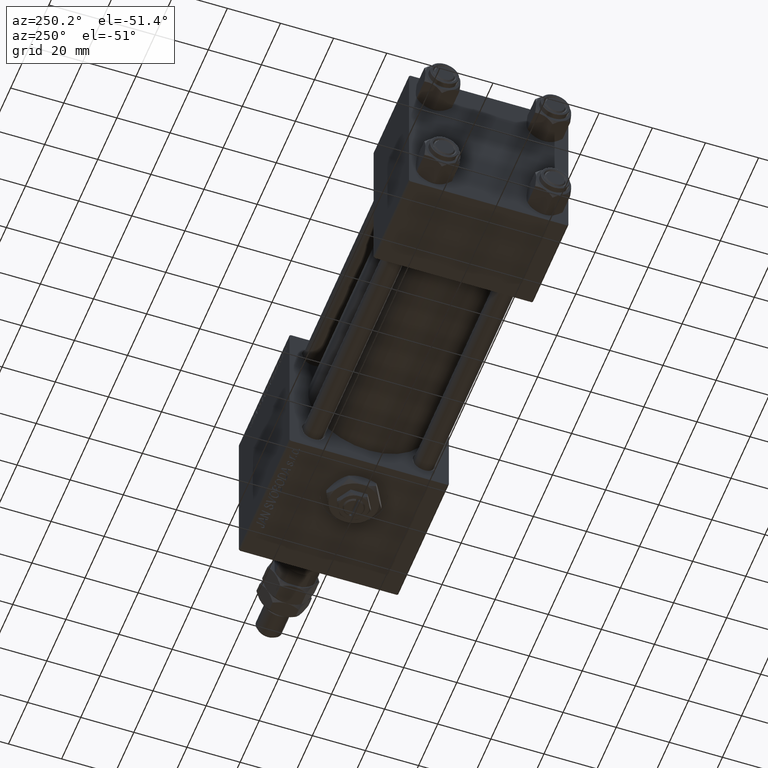
[diagram: clean part render]
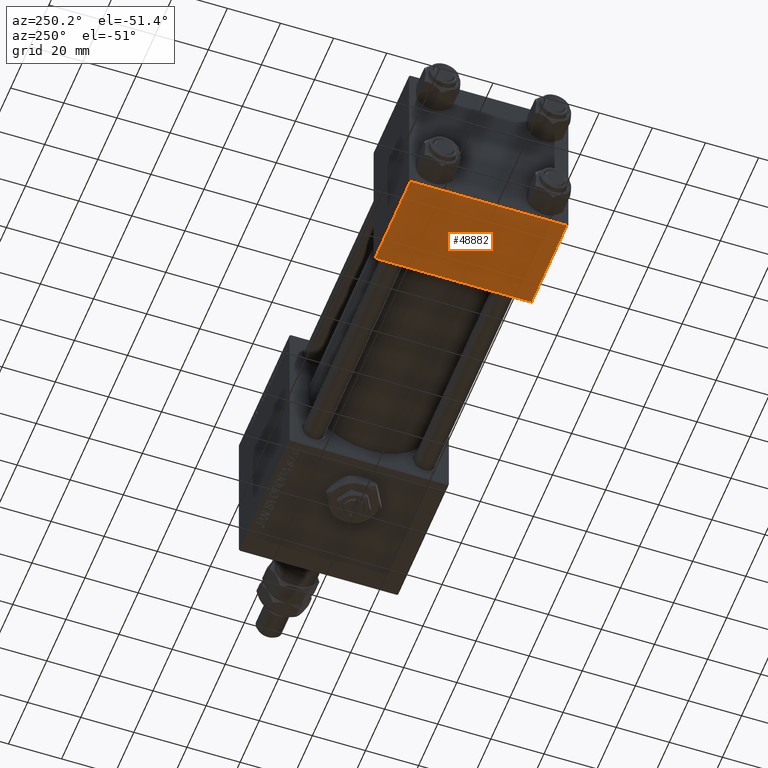
[diagram: same view with one face highlighted and labeled with its STEP entity id]
A machine part, auxiliary view. The second image highlights one B-rep face of the part: STEP entity #48882.
In plain terms, the highlighted planar face has unit normal (0, 0, -1).
Its self-contained STEP definition (entity closure, byte-faithful):
#221 = AXIS2_PLACEMENT_3D ( 'NONE', #46017, #6441, #46997 ) ;
#791 = VECTOR ( 'NONE', #17197, 1000.000000000000000 ) ;
#3949 = VERTEX_POINT ( 'NONE', #25772 ) ;
#4373 = VERTEX_POINT ( 'NONE', #20224 ) ;
#6217 = EDGE_CURVE ( 'NONE', #41614, #3949, #20733, .T. ) ;
#6325 = CARTESIAN_POINT ( 'NONE',  ( 0.000000000000000000, 29.49999999999997868, -30.00000000000000000 ) ) ;
#6441 = DIRECTION ( 'NONE',  ( 0.000000000000000000, 1.156482317317871725E-16, -1.000000000000000000 ) ) ;
#8507 = LINE ( 'NONE', #16361, #41123 ) ;
#14078 = VECTOR ( 'NONE', #26403, 1000.000000000000000 ) ;
#14203 = CARTESIAN_POINT ( 'NONE',  ( 37.00000000000000000, -29.50000000000000000, -30.00000000000000711 ) ) ;
#14277 = VECTOR ( 'NONE', #21932, 1000.000000000000000 ) ;
#16361 = CARTESIAN_POINT ( 'NONE',  ( 37.00000000000000000, 29.99999999999999289, -30.00000000000000000 ) ) ;
#17197 = DIRECTION ( 'NONE',  ( -1.000000000000000000, 0.000000000000000000, 0.000000000000000000 ) ) ;
#18351 = PLANE ( 'NONE',  #221 ) ;
#20224 = CARTESIAN_POINT ( 'NONE',  ( 37.00000000000000000, 29.49999999999997868, -30.00000000000000000 ) ) ;
#20733 = LINE ( 'NONE', #53440, #791 ) ;
#21932 = DIRECTION ( 'NONE',  ( 1.000000000000000000, 0.000000000000000000, 0.000000000000000000 ) ) ;
#25772 = CARTESIAN_POINT ( 'NONE',  ( 0.000000000000000000, -29.50000000000000000, -30.00000000000000711 ) ) ;
#25925 = EDGE_LOOP ( 'NONE', ( #43828, #52325, #26712, #29917 ) ) ;
#25979 = LINE ( 'NONE', #42462, #14277 ) ;
#26403 = DIRECTION ( 'NONE',  ( 0.000000000000000000, -1.000000000000000000, -1.156482317317871725E-16 ) ) ;
#26712 = ORIENTED_EDGE ( 'NONE', *, *, #36057, .T. ) ;
#29917 = ORIENTED_EDGE ( 'NONE', *, *, #6217, .T. ) ;
#30360 = VERTEX_POINT ( 'NONE', #6325 ) ;
#33396 = DIRECTION ( 'NONE',  ( 0.000000000000000000, -1.000000000000000000, -1.156482317317871725E-16 ) ) ;
#33725 = CARTESIAN_POINT ( 'NONE',  ( 0.000000000000000000, 29.99999999999999289, -30.00000000000000000 ) ) ;
#33972 = EDGE_CURVE ( 'NONE', #30360, #4373, #25979, .T. ) ;
#35371 = FACE_OUTER_BOUND ( 'NONE', #25925, .T. ) ;
#36057 = EDGE_CURVE ( 'NONE', #4373, #41614, #8507, .T. ) ;
#41123 = VECTOR ( 'NONE', #33396, 1000.000000000000000 ) ;
#41614 = VERTEX_POINT ( 'NONE', #14203 ) ;
#42462 = CARTESIAN_POINT ( 'NONE',  ( 37.00000000000000000, 29.49999999999997868, -30.00000000000000000 ) ) ;
#43828 = ORIENTED_EDGE ( 'NONE', *, *, #50507, .F. ) ;
#46017 = CARTESIAN_POINT ( 'NONE',  ( 37.00000000000000000, 29.99999999999999289, -30.00000000000000000 ) ) ;
#46997 = DIRECTION ( 'NONE',  ( 0.000000000000000000, 1.000000000000000000, 1.156482317317871725E-16 ) ) ;
#48882 = ADVANCED_FACE ( 'NONE', ( #35371 ), #18351, .T. ) ;
#50507 = EDGE_CURVE ( 'NONE', #30360, #3949, #50992, .T. ) ;
#50992 = LINE ( 'NONE', #33725, #14078 ) ;
#52325 = ORIENTED_EDGE ( 'NONE', *, *, #33972, .T. ) ;
#53440 = CARTESIAN_POINT ( 'NONE',  ( 0.000000000000000000, -29.50000000000001066, -30.00000000000000711 ) ) ;